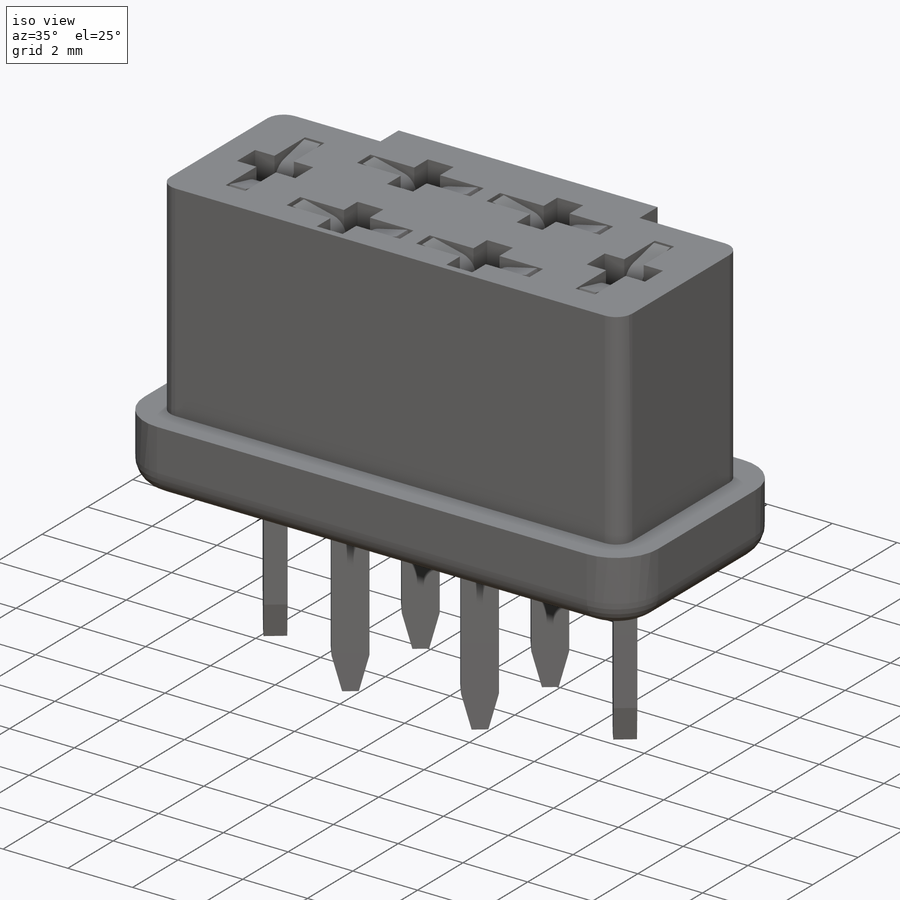
[diagram: iso view]
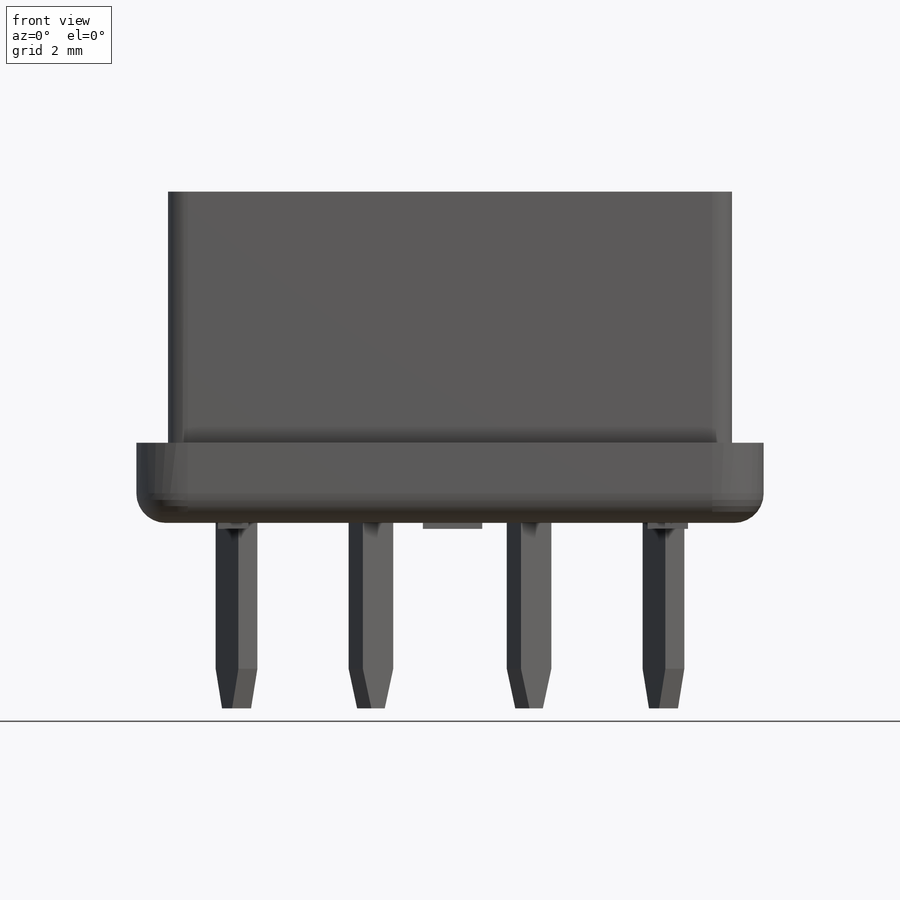
[diagram: front view]
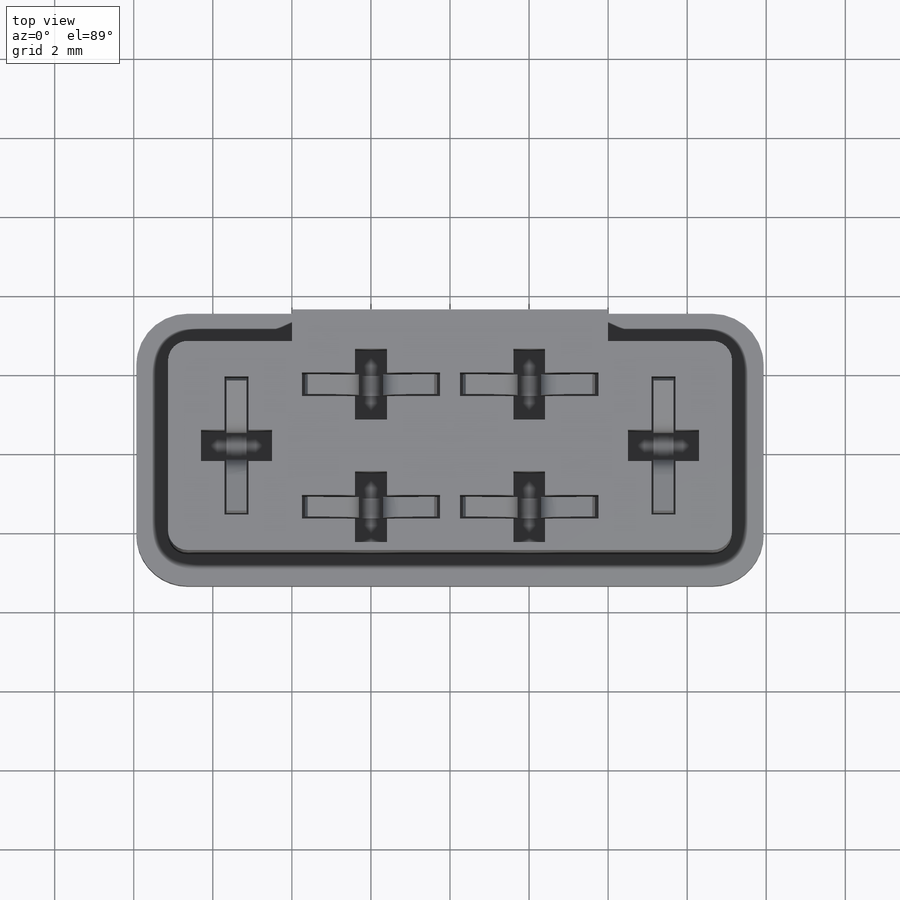
[diagram: top view]
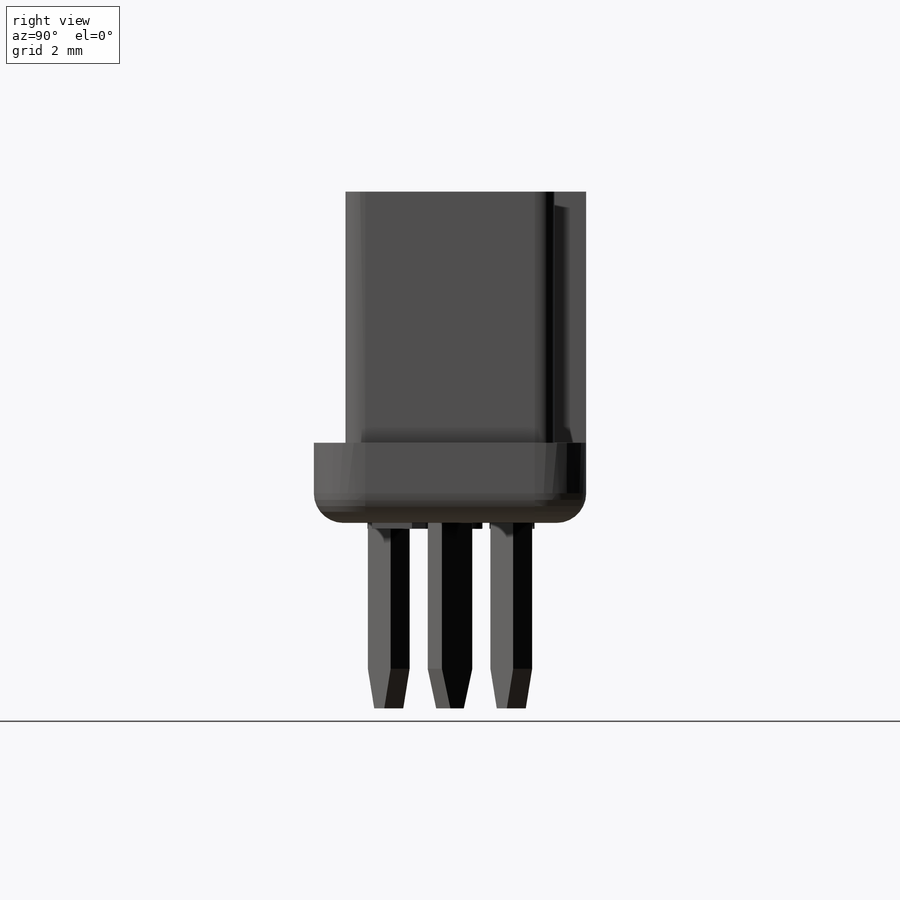
[diagram: right view]
SOLIDWORKS PART (.sldprt)
format: sldprt  version: not decoded by parser v0  size: 769,024 bytes
history: native  units: mm
features: sketch x7, extrude x5, plane x3, mirror x3, fillet x2, cut_extrude x2, material x1, chamfer x1 (+12 scaffold rows collapsed)
feature tree (36):
  scaffold x12  (default folders/planes/origin — collapsed)
  material  "Material <not specified>"
  sketch  "Sketch1"  dims[D1=6.89mm D2=15.87mm]
  extrude  "Boss-Extrude1"  Depth=8.38mm
  fillet  "Fillet1"  Radius=1.3mm
  fillet  "Fillet2"  Radius=0.75mm
  sketch  "Sketch2"  dims[D1=0.8mm D2=4.0mm D3=4.0mm]
  cut_extrude  "Cut-Extrude1"  Depth=6.35mm
  sketch  "Sketch3"  dims[D1=3.5mm D2=0.8mm D3=0.6mm D4=1.8mm D5=4.0mm D6=2.5mm D7=10.8mm]
  cut_extrude  "Cut-Extrude2"  Depth=3mm
  sketch  "Sketch5"  dims[D1=0.6mm D2=0.96mm]
  extrude  "Boss-Extrude2"  Depth=4.69mm
  chamfer  "Chamfer1"  Distance=1mm Angle=15deg
  plane  "Plane1"
  sketch  "Sketch6"  dims[D3=0.2mm D4=0.5mm D1=0.3mm D2=0.3mm D5=0.15mm D6=0.1mm D7=0.7mm D8=0.3mm]
  extrude  "Boss-Extrude3"  Depth=0.5mm
  mirror  "Mirror1"
  mirror  "Mirror2"
  plane  "Plane2"
  plane  "Plane3"
  sketch  "Sketch7"  dims[c1.D3=0.2mm c1.D4=0.5mm c1.D1=0.3mm c1.D2=0.3mm c1.D5=0.15mm c1.D6=0.1mm c1.D7=0.7mm c1.D8=0.3mm c2.D5=~1.287128mm c2.D6=~0.687128mm c2.D7=~3.287128mm]
  extrude  "Boss-Extrude4"  Depth=0.5mm
  mirror  "Mirror3"
  sketch  "Sketch8"
  extrude  "Boss-Extrude5"  Depth=0.15mm
decode coverage: 16 of 20 modeling features carry decoded parameters
note: ~ marks probable driven/reference dimensions
note: suppression state not decoded; provenance and decode notes live in map.json
